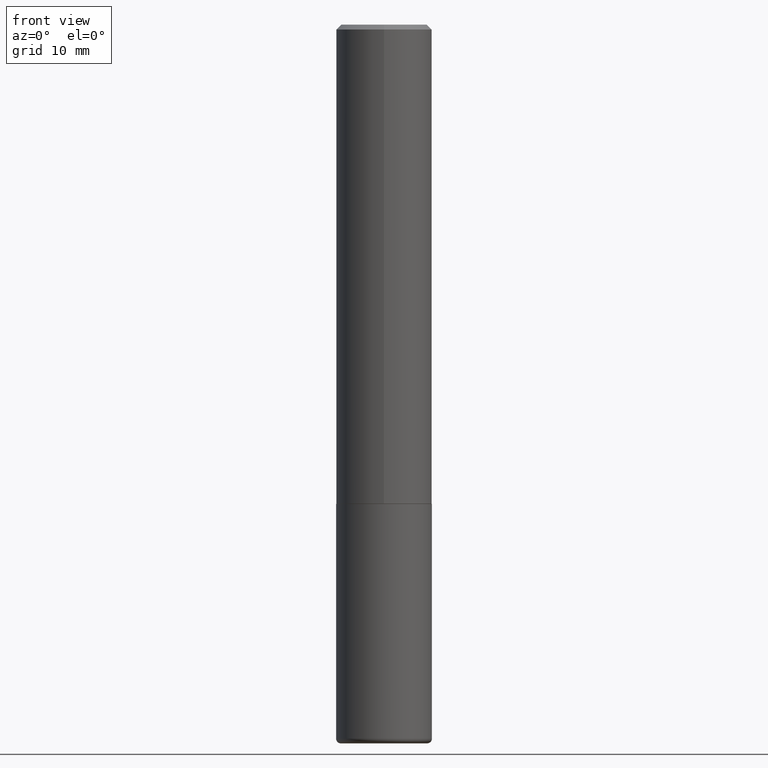
[diagram: clean part render]
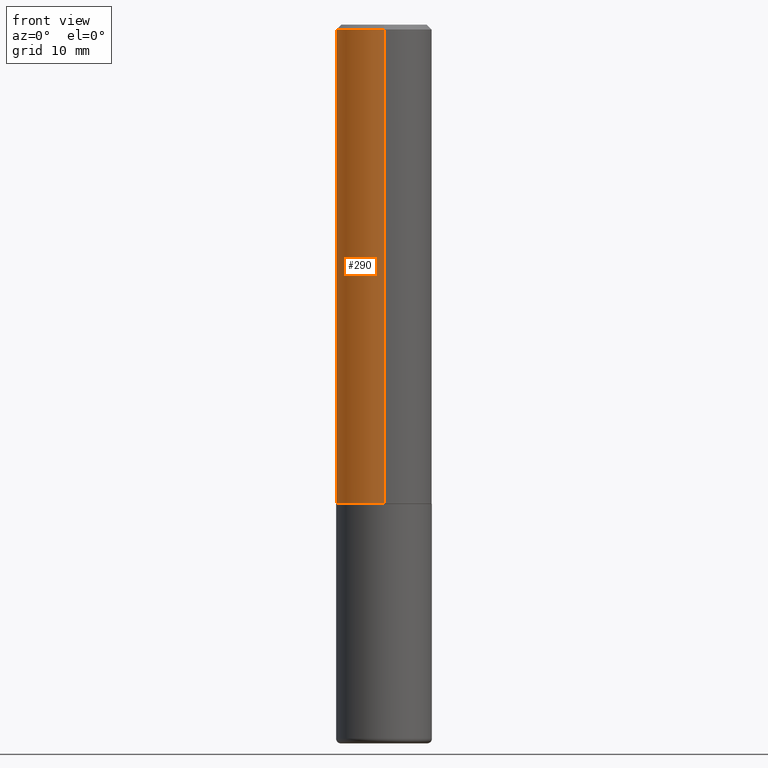
[diagram: same view with one face highlighted and labeled with its STEP entity id]
A machine part, front view. The second image highlights one B-rep face of the part: STEP entity #290.
In plain terms, the highlighted cylindrical surface (partial cylindrical patch) has radius 5 mm, axis along (-0, 0, 1).
Its self-contained STEP definition (entity closure, byte-faithful):
#2 = EDGE_CURVE ( 'NONE', #211, #388, #187, .T. ) ;
#14 = VECTOR ( 'NONE', #213, 39.37007874015748143 ) ;
#33 = CARTESIAN_POINT ( 'NONE',  ( 4.890537682593712927E-31, -6.983535399888942699E-17, -0.02000000000000004205 ) ) ;
#61 = CARTESIAN_POINT ( 'NONE',  ( 1.398703375343757985E-15, 0.1968500000000001360, -6.873544717340683232E-16 ) ) ;
#68 = VERTEX_POINT ( 'NONE', #308 ) ;
#75 = CIRCLE ( 'NONE', #362, 0.1968500000000000527 ) ;
#96 = ORIENTED_EDGE ( 'NONE', *, *, #131, .T. ) ;
#110 = DIRECTION ( 'NONE',  ( -6.982962677686265922E-15, -1.000000000000000000, 4.163344669033670112E-15 ) ) ;
#123 = DIRECTION ( 'NONE',  ( -2.445268841296851437E-29, 3.491767699944464940E-15, 1.000000000000000000 ) ) ;
#127 = DIRECTION ( 'NONE',  ( -2.445268841296851437E-29, 3.491767699944464545E-15, 1.000000000000000000 ) ) ;
#131 = EDGE_CURVE ( 'NONE', #239, #211, #157, .T. ) ;
#148 = DIRECTION ( 'NONE',  ( -2.445268841296851437E-29, 3.491767699944464545E-15, 1.000000000000000000 ) ) ;
#157 = CIRCLE ( 'NONE', #263, 0.1968500000000002470 ) ;
#159 = DIRECTION ( 'NONE',  ( -6.982962677686265922E-15, -1.000000000000000000, 3.491767699944464545E-15 ) ) ;
#187 = LINE ( 'NONE', #414, #200 ) ;
#191 = CARTESIAN_POINT ( 'NONE',  ( 1.398703375343782440E-15, 0.1968499999999933914, -1.967500000000000471 ) ) ;
#198 = ORIENTED_EDGE ( 'NONE', *, *, #2, .T. ) ;
#200 = VECTOR ( 'NONE', #123, 39.37007874015748143 ) ;
#203 = EDGE_CURVE ( 'NONE', #239, #68, #381, .T. ) ;
#211 = VERTEX_POINT ( 'NONE', #217 ) ;
#213 = DIRECTION ( 'NONE',  ( -2.445268841296851437E-29, 3.491767699944464940E-15, 1.000000000000000000 ) ) ;
#217 = CARTESIAN_POINT ( 'NONE',  ( -1.374596203102495065E-15, -0.1968500000000071026, -1.967499999999998916 ) ) ;
#225 = CARTESIAN_POINT ( 'NONE',  ( -1.350489030861325626E-15, -0.1968500000000001082, -0.01999999999999935510 ) ) ;
#239 = VERTEX_POINT ( 'NONE', #191 ) ;
#248 = CYLINDRICAL_SURFACE ( 'NONE', #408, 0.1968500000000001360 ) ;
#249 = ORIENTED_EDGE ( 'NONE', *, *, #203, .F. ) ;
#259 = DIRECTION ( 'NONE',  ( -6.982962677686265133E-15, -1.000000000000000000, 3.491137977679279029E-15 ) ) ;
#263 = AXIS2_PLACEMENT_3D ( 'NONE', #315, #334, #110 ) ;
#278 = CARTESIAN_POINT ( 'NONE',  ( 0.000000000000000000, 0.000000000000000000, 0.000000000000000000 ) ) ;
#290 = ADVANCED_FACE ( 'NONE', ( #316 ), #248, .T. ) ;
#308 = CARTESIAN_POINT ( 'NONE',  ( 1.374596203102542200E-15, 0.1968499999999999694, -0.02000000000000072900 ) ) ;
#315 = CARTESIAN_POINT ( 'NONE',  ( 4.811066445251554069E-29, -6.870052949640732965E-15, -1.967499999999999805 ) ) ;
#316 = FACE_OUTER_BOUND ( 'NONE', #358, .T. ) ;
#325 = EDGE_CURVE ( 'NONE', #68, #388, #75, .T. ) ;
#334 = DIRECTION ( 'NONE',  ( -2.445268841296851437E-29, 3.491767699944464545E-15, 1.000000000000000000 ) ) ;
#358 = EDGE_LOOP ( 'NONE', ( #249, #96, #198, #401 ) ) ;
#362 = AXIS2_PLACEMENT_3D ( 'NONE', #33, #148, #259 ) ;
#381 = LINE ( 'NONE', #61, #14 ) ;
#388 = VERTEX_POINT ( 'NONE', #225 ) ;
#401 = ORIENTED_EDGE ( 'NONE', *, *, #325, .F. ) ;
#408 = AXIS2_PLACEMENT_3D ( 'NONE', #278, #127, #159 ) ;
#414 = CARTESIAN_POINT ( 'NONE',  ( -1.374596203102542397E-15, -0.1968500000000001360, 6.873544717340683232E-16 ) ) ;